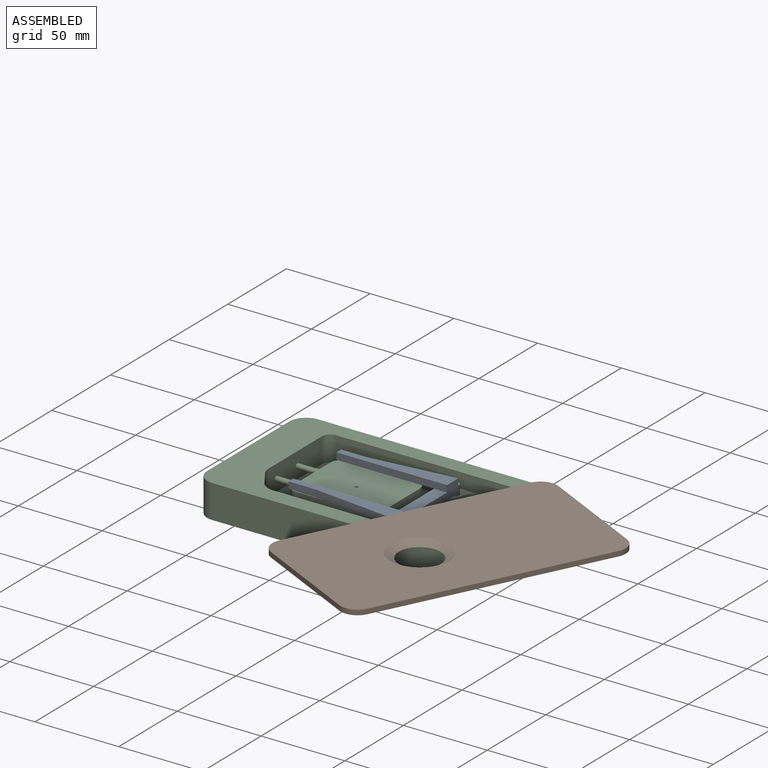
[diagram: assembled view]
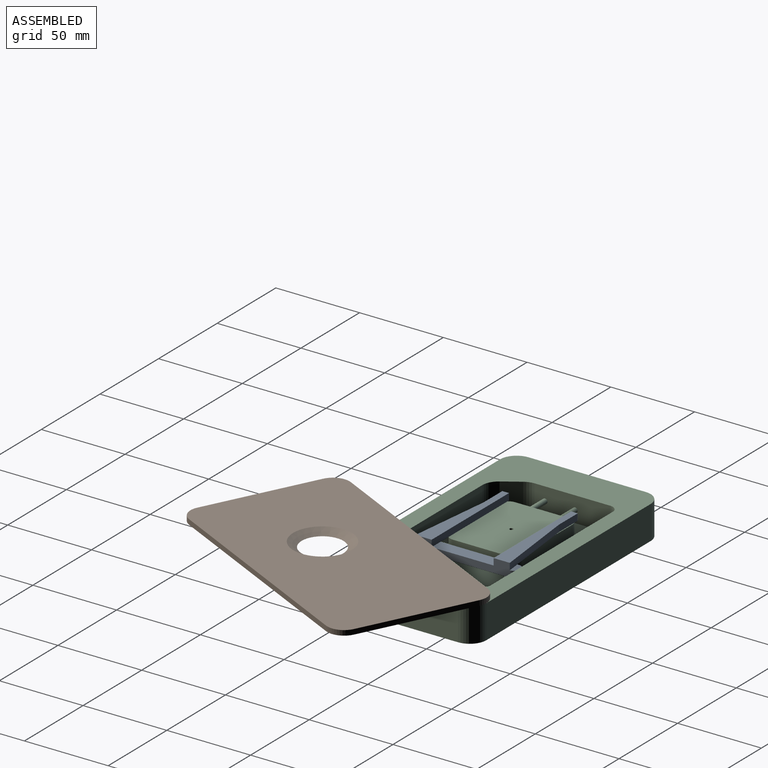
[diagram: assembled view, second angle]
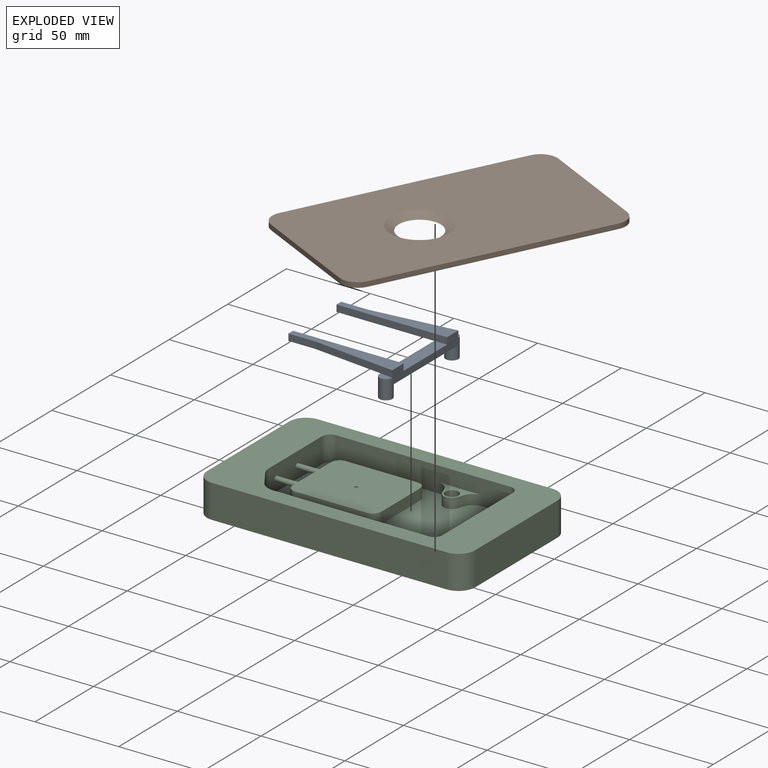
[diagram: exploded view]
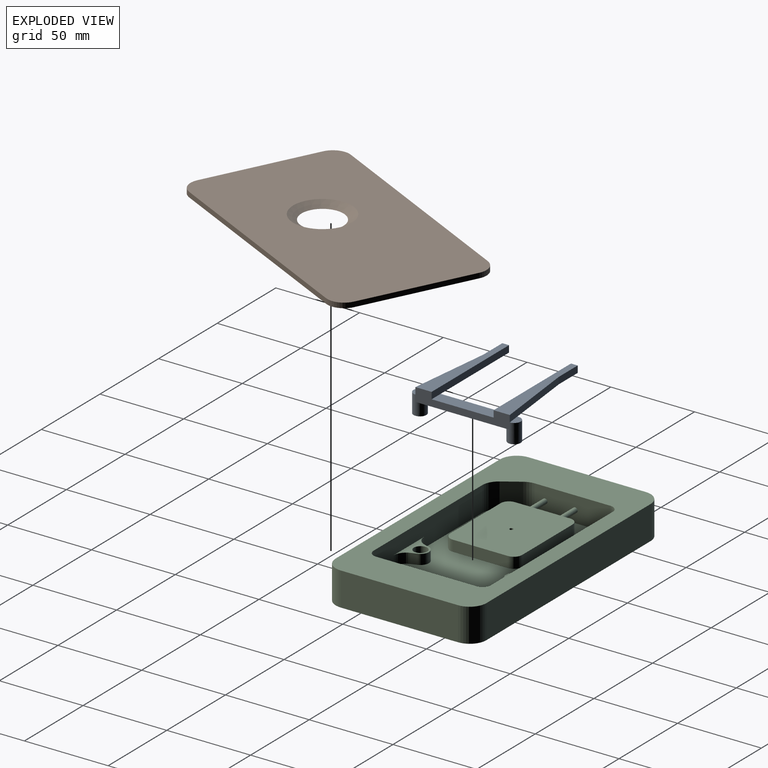
[diagram: exploded view, second angle]
ASSEMBLY  parts=3 mates=3
PART A: 22 faces, bbox 64x66x15.5 mm
  f0: plane 37x7.7mm, normal (0,0,1), area 284.9mm2, adj f6,f7,f11,f16
  f1: plane 7.7x4.72mm, normal (0,0,1), area 26.6mm2, adj f4,f7,f17
  f2: cylinder r=3.85mm len=11.5mm, axis (0,0,-1), area 229.8mm2, adj f3,f6,f7,f8,f9
  f3: plane 7.7x7.7mm, normal (0,0,-1), area 46.6mm2, adj f2
  f4: cylinder r=3.85mm len=11.5mm, axis (0,0,-1), area 229.8mm2, adj f1,f5,f6,f7,f9
  f5: plane 7.7x7.7mm, normal (0,0,-1), area 46.6mm2, adj f4
  f6: plane 56.33x8mm, normal (0,-1,0), area 302.6mm2, adj f0,f2,f4,f9,f10,f11,f14,f16
  f7: plane 56.33x4mm, normal (0,1,0), area 225.3mm2, adj f0,f1,f2,f4,f8,f9,f15,f21
  f8: plane 7.7x4.72mm, normal (0,0,1), area 26.6mm2, adj f2,f7,f10
  f9: plane 56.33x7.7mm, normal (0,0,-1), area 387.2mm2, adj f2,f4,f6,f7
  f10: plane 50x5.67mm, normal (-0.99,0.11,0), area 201.3mm2, adj f6,f8,f13,f14,f15
  f11: plane 66x4mm, normal (1,0,0), area 264mm2, adj f0,f6,f12,f14,f15
  f12: plane 4x4mm, normal (0,1,0), area 16mm2, adj f11,f13,f14,f15
  f13: plane 16x4mm, normal (-1,0,0), area 64mm2, adj f10,f12,f14,f15
  f14: plane 66x9.67mm, normal (0,0,1), area 405.6mm2, adj f6,f10,f11,f12,f13
  f15: plane 58.3x8.79mm, normal (0,0,-1), area 334.6mm2, adj f7,f10,f11,f12,f13
  f16: plane 66x4mm, normal (-1,0,0), area 264mm2, adj f0,f6,f19,f20,f21
  f17: plane 50x5.67mm, normal (0.99,0.11,0), area 201.3mm2, adj f1,f6,f18,f20,f21
  f18: plane 16x4mm, normal (1,0,0), area 64mm2, adj f17,f19,f20,f21
  f19: plane 4x4mm, normal (0,1,0), area 16mm2, adj f16,f18,f20,f21
  f20: plane 66x9.67mm, normal (0,0,1), area 405.6mm2, adj f6,f16,f17,f18,f19
  f21: plane 58.3x8.79mm, normal (0,0,-1), area 334.6mm2, adj f7,f16,f17,f18,f19
PART B: 11 faces, bbox 160x90x3 mm
  f0: plane 140x3mm, normal (0,1,0), area 420mm2, adj f1,f7,f8,f9
  f1: cylinder r=10mm len=10mm, axis (0,0,-1), area 47.1mm2, adj f0,f2,f8,f9
  f2: plane 70x3mm, normal (-1,0,0), area 210mm2, adj f1,f3,f8,f9
  f3: cylinder r=10mm len=10mm, axis (0,0,-1), area 47.1mm2, adj f2,f4,f8,f9
  f4: plane 140x3mm, normal (0,-1,0), area 420mm2, adj f3,f5,f8,f9
  f5: cylinder r=10mm len=10mm, axis (0,0,-1), area 47.1mm2, adj f4,f6,f8,f9
  f6: plane 70x3mm, normal (1,0,0), area 210mm2, adj f5,f7,f8,f9
  f7: cylinder r=10mm len=10mm, axis (0,0,-1), area 47.1mm2, adj f0,f6,f8,f9
  f8: plane 160x90mm, normal (0,0,1), area 13352mm2, adj f0,f1,f2,f3,f4,f5,f6,f7
  f9: plane 160x90mm, normal (0,0,-1), area 13823.3mm2, adj f0,f1,f2,f3,f4,f5,f6,f7
  f10: cone r=12.5mm half-angle=59deg, axis (0,0,1), area 549.6mm2, adj f8,f9
PART C: 50 faces, bbox 160x90x20 mm
  f0: plane 104x15mm, normal (0,-1,0), area 1403.1mm2, adj f7,f8,f15,f16,f38,f42,f44
  f1: plane 70x20mm, normal (1,0,0), area 1400mm2, adj f5,f15,f46,f49
  f2: plane 140x20mm, normal (0,1,0), area 2800mm2, adj f5,f15,f46,f47
  f3: plane 70x20mm, normal (-1,0,0), area 1400mm2, adj f5,f15,f47,f48
  f4: plane 140x20mm, normal (0,-1,0), area 2800mm2, adj f5,f15,f48,f49
  f5: plane 160x90mm, normal (0,0,-1), area 14314.2mm2, adj f1,f2,f3,f4,f46,f47,f48,f49
  f6: plane 45.3x15mm, normal (1,0,0), area 665.4mm2, adj f7,f14,f15,f16,f17,f18
  f7: cylinder r=5mm len=15mm, axis (0,0,-1), area 117.8mm2, adj f0,f6,f15,f16
  f8: cylinder r=5mm len=15mm, axis (0,0,-1), area 117.8mm2, adj f0,f9,f15,f16
  f9: plane 60x15mm, normal (-1,0,0), area 900mm2, adj f8,f10,f15,f16
  f10: cylinder r=5mm len=15mm, axis (0,0,-1), area 117.8mm2, adj f9,f11,f15,f16
  f11: plane 92.61x15mm, normal (0,1,0), area 1232.3mm2, adj f10,f12,f15,f16,f30,f31,f36
  f12: cylinder r=10mm len=15mm, axis (0,0,-1), area 148.3mm2, adj f11,f13,f15,f16
  f13: plane 15x9.7mm, normal (0.84,0.55,0), area 174.2mm2, adj f12,f14,f15,f16
  f14: cylinder r=10mm len=15mm, axis (0,0,-1), area 87.4mm2, adj f6,f13,f15,f16
  f15: plane 160x90mm, normal (0,0,1), area 6447.4mm2, adj f0,f1,f2,f3,f4,f6,f7,f8
  f16: plane 114x70mm, normal (0,0,1), area 7583.9mm2, adj f0,f6,f7,f8,f9,f10,f11,f12
  f17: cylinder r=1.5mm len=15mm, axis (-1,0,0), area 141.4mm2, adj f6,f24
  f18: cylinder r=1.5mm len=15mm, axis (-1,0,0), area 141.4mm2, adj f6,f24
  f19: plane 53x43mm, normal (0,0,1), area 2254.4mm2, adj f20,f22,f23,f24,f25,f26,f27,f28
  f20: plane 43x6.5mm, normal (0,-1,0), area 279.5mm2, adj f19,f21,f25,f27
  f21: plane 53x43mm, normal (0,0,-1), area 2254.4mm2, adj f20,f22,f23,f24,f25,f26,f27,f28
  f22: plane 43x6.5mm, normal (0,1,0), area 279.5mm2, adj f19,f21,f26,f28
  f23: plane 33x6.5mm, normal (1,0,0), area 214.5mm2, adj f19,f21,f27,f28
  f24: plane 33x6.5mm, normal (-1,0,0), area 200.4mm2, adj f17,f18,f19,f21,f25,f26
  f25: cylinder r=5mm len=6.5mm, axis (0,0,-1), area 51.1mm2, adj f19,f20,f21,f24
  f26: cylinder r=5mm len=6.5mm, axis (0,0,1), area 51.1mm2, adj f19,f21,f22,f24
  f27: cylinder r=5mm len=6.5mm, axis (0,0,1), area 51.1mm2, adj f19,f20,f21,f23
  f28: cylinder r=5mm len=6.5mm, axis (0,0,-1), area 51.1mm2, adj f19,f21,f22,f23
  f29: cylinder r=1mm len=6.5mm, axis (0,0,1), area 40.8mm2, adj f19,f21
  f30: cylinder r=7.5mm len=7.08mm, axis (0,0,-1), area 55.5mm2, adj f11,f16,f34,f36
  f31: cylinder r=7.5mm len=7.08mm, axis (0,0,-1), area 55.5mm2, adj f11,f16,f32,f36
  f32: plane 6x3.65mm, normal (0.94,0.33,0), area 23.2mm2, adj f16,f31,f33,f36
  f33: cylinder r=5mm len=9.43mm, axis (0,0,-1), area 74mm2, adj f16,f32,f34,f36
  f34: plane 6x3.65mm, normal (-0.94,0.33,0), area 23.2mm2, adj f16,f30,f33,f36
  f35: cylinder r=4mm len=8mm, axis (0,0,-1), area 150.8mm2, adj f36,f37
  f36: plane 26.15x12mm, normal (0,0,1), area 91.1mm2, adj f11,f30,f31,f32,f33,f34,f35
  f37: plane 8x8mm, normal (0,0,1), area 50.3mm2, adj f35
  f38: cylinder r=7.5mm len=7.08mm, axis (0,0,-1), area 55.5mm2, adj f0,f16,f39,f44
  f39: plane 6x3.65mm, normal (-0.94,-0.33,0), area 23.2mm2, adj f16,f38,f40,f44
  f40: cylinder r=5mm len=9.43mm, axis (0,0,-1), area 74mm2, adj f16,f39,f41,f44
  f41: plane 6x3.65mm, normal (0.94,-0.33,0), area 23.2mm2, adj f16,f40,f42,f44
  f42: cylinder r=7.5mm len=7.08mm, axis (0,0,-1), area 55.5mm2, adj f0,f16,f41,f44
  f43: cylinder r=4mm len=8mm, axis (0,0,-1), area 150.8mm2, adj f44,f45
  f44: plane 26.15x12mm, normal (0,0,1), area 91.1mm2, adj f0,f38,f39,f40,f41,f42,f43
  f45: plane 8x8mm, normal (0,0,1), area 50.3mm2, adj f43
  f46: cylinder r=10mm len=20mm, axis (0,0,1), area 314.2mm2, adj f1,f2,f5,f15
  f47: cylinder r=10mm len=20mm, axis (0,0,-1), area 314.2mm2, adj f2,f3,f5,f15
  f48: cylinder r=10mm len=20mm, axis (0,0,1), area 314.2mm2, adj f3,f4,f5,f15
  f49: cylinder r=10mm len=20mm, axis (0,0,-1), area 314.2mm2, adj f1,f4,f5,f15
PLACE A rot(axis=(0,0,1),90deg) t=(34.35,-21.66,26.58)mm
PLACE B rot(axis=(0,0,1),63.6deg) t=(87.17,-156.43,41.8)mm
PLACE C t=(12.35,-21.49,21.8)mm fixed
MATE slider C.f40 <-> A.f4  axis (0,0,-1) through (34.35,6.51,29.8)mm
MATE revolute C.f46 <-> B.f7  axis (0,0,1) through (82.35,13.51,41.8)mm
MATE planar C.f47 <-> B.f1  axis (0,0,1) through (-57.65,13.51,41.8)mm
